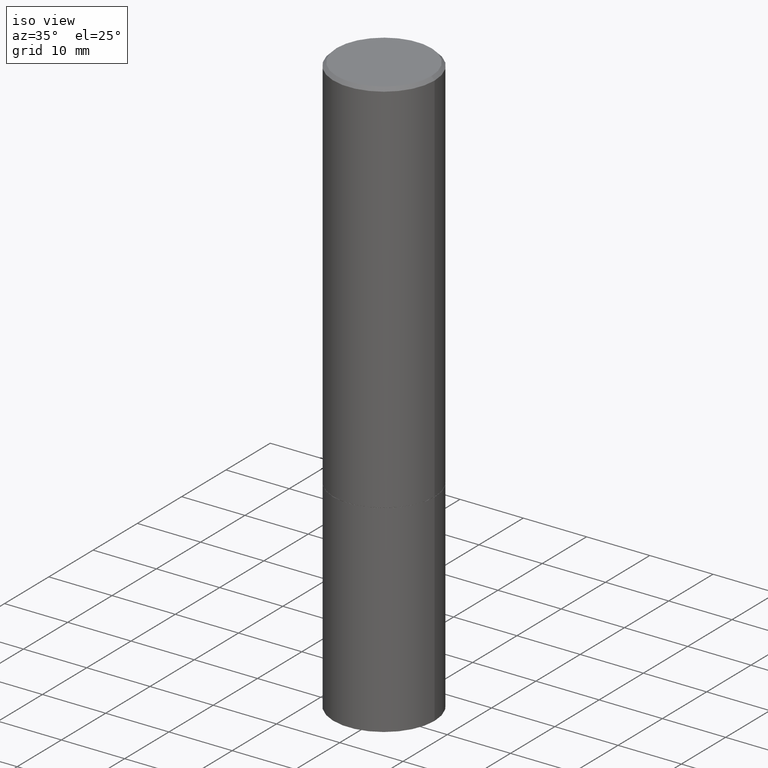
[diagram: clean part render]
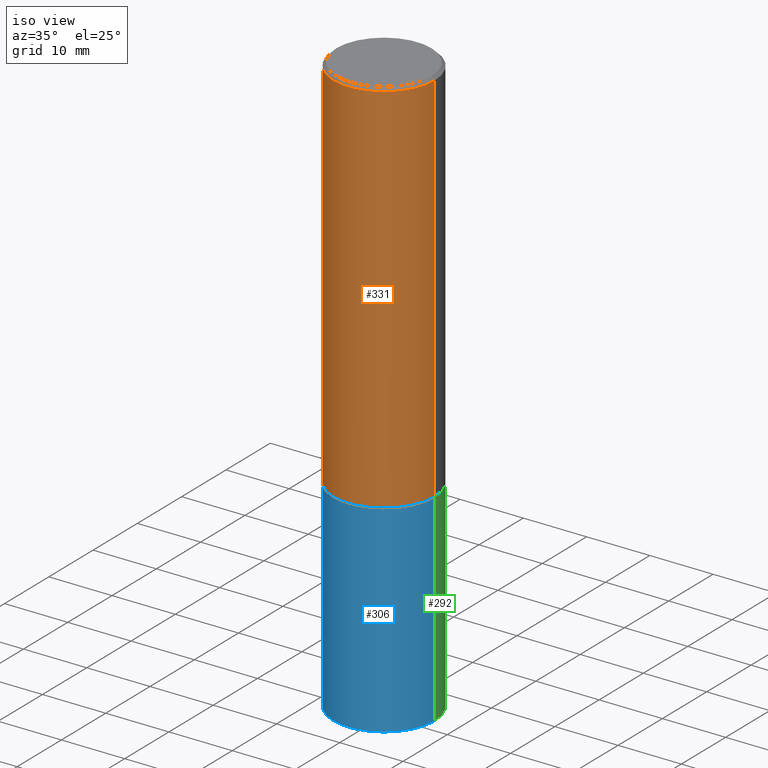
[diagram: same view with three faces highlighted in distinct colors, each labeled with its STEP entity id]
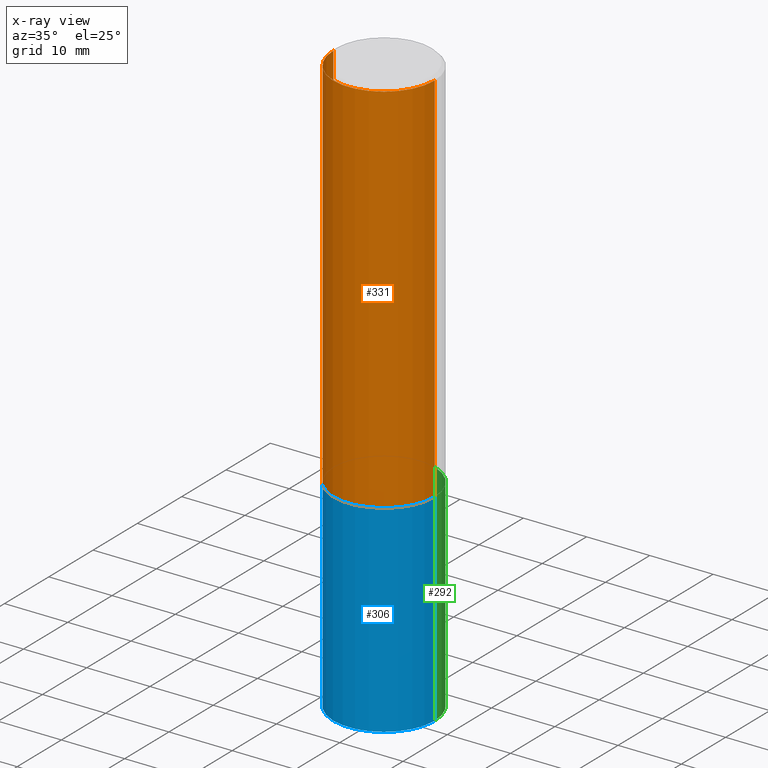
[diagram: x-ray of the same camera — body ghosted, the three highlighted faces saturated]
A machine part, iso view with three faces highlighted in distinct colors.
The next image is the same camera in x-ray (body ghosted, the three faces saturated) — at least one of them is partly hidden behind the body in this view.
Their STEP definitions:

[orange] entity #331 — the highlighted cylindrical surface (partial cylindrical patch) has radius 7.9997 mm, axis along (-0, 0, 1).
#3 = VERTEX_POINT ( 'NONE', #155 ) ;
#22 = CARTESIAN_POINT ( 'NONE',  ( -0.3149499999999998967, 2.237854346276434801E-15, -1.549218606675782116E-29 ) ) ;
#36 = VERTEX_POINT ( 'NONE', #72 ) ;
#52 = EDGE_CURVE ( 'NONE', #36, #177, #195, .T. ) ;
#67 = VECTOR ( 'NONE', #360, 39.37007874015748143 ) ;
#70 = CARTESIAN_POINT ( 'NONE',  ( -0.3149499999999997302, 2.129454468560424601E-15, -0.02000000000000007327 ) ) ;
#72 = CARTESIAN_POINT ( 'NONE',  ( -0.3149500000000000077, -1.919103335750211213E-15, -2.361199999999999743 ) ) ;
#74 = EDGE_CURVE ( 'NONE', #86, #3, #101, .T. ) ;
#86 = VERTEX_POINT ( 'NONE', #70 ) ;
#98 = DIRECTION ( 'NONE',  ( -2.445468806185136597E-29, 3.491481338843145583E-15, 1.000000000000000000 ) ) ;
#101 = CIRCLE ( 'NONE', #131, 0.3149499999999997302 ) ;
#126 = LINE ( 'NONE', #22, #67 ) ;
#128 = DIRECTION ( 'NONE',  ( 1.000000000000000000, -6.982962677686263555E-15, 0.000000000000000000 ) ) ;
#131 = AXIS2_PLACEMENT_3D ( 'NONE', #245, #98, #298 ) ;
#154 = ORIENTED_EDGE ( 'NONE', *, *, #162, .F. ) ;
#155 = CARTESIAN_POINT ( 'NONE',  ( 0.3149499999999997302, -2.230543471175005478E-15, -0.02000000000000007327 ) ) ;
#162 = EDGE_CURVE ( 'NONE', #36, #86, #126, .T. ) ;
#177 = VERTEX_POINT ( 'NONE', #227 ) ;
#181 = AXIS2_PLACEMENT_3D ( 'NONE', #352, #303, #128 ) ;
#185 = ORIENTED_EDGE ( 'NONE', *, *, #74, .F. ) ;
#188 = EDGE_LOOP ( 'NONE', ( #154, #207, #232, #185 ) ) ;
#195 = CIRCLE ( 'NONE', #181, 0.3149500000000000077 ) ;
#196 = AXIS2_PLACEMENT_3D ( 'NONE', #234, #340, #343 ) ;
#207 = ORIENTED_EDGE ( 'NONE', *, *, #52, .T. ) ;
#222 = CYLINDRICAL_SURFACE ( 'NONE', #196, 0.3149499999999998967 ) ;
#224 = EDGE_CURVE ( 'NONE', #177, #3, #251, .T. ) ;
#227 = CARTESIAN_POINT ( 'NONE',  ( 0.3149500000000000077, -1.044336983261372333E-14, -2.361199999999999743 ) ) ;
#232 = ORIENTED_EDGE ( 'NONE', *, *, #224, .T. ) ;
#234 = CARTESIAN_POINT ( 'NONE',  ( 0.000000000000000000, 0.000000000000000000, 0.000000000000000000 ) ) ;
#245 = CARTESIAN_POINT ( 'NONE',  ( 4.890937612370290675E-31, -6.982962677686316261E-17, -0.02000000000000007327 ) ) ;
#251 = LINE ( 'NONE', #330, #294 ) ;
#294 = VECTOR ( 'NONE', #336, 39.37007874015748143 ) ;
#298 = DIRECTION ( 'NONE',  ( 1.000000000000000000, -6.982962677686266711E-15, 0.000000000000000000 ) ) ;
#303 = DIRECTION ( 'NONE',  ( -2.445468806185136597E-29, 3.491481338843145583E-15, 1.000000000000000000 ) ) ;
#330 = CARTESIAN_POINT ( 'NONE',  ( 0.3149499999999998967, -2.199284095337288688E-15, 1.535751875536929289E-29 ) ) ;
#331 = ADVANCED_FACE ( 'NONE', ( #357 ), #222, .T. ) ;
#336 = DIRECTION ( 'NONE',  ( -2.445468806185136877E-29, 3.491481338843145188E-15, 1.000000000000000000 ) ) ;
#340 = DIRECTION ( 'NONE',  ( -2.445468806185136597E-29, 3.491481338843145583E-15, 1.000000000000000000 ) ) ;
#343 = DIRECTION ( 'NONE',  ( 1.000000000000000000, -6.982962677686265922E-15, 4.876176775795935232E-29 ) ) ;
#352 = CARTESIAN_POINT ( 'NONE',  ( 5.774240945164344150E-29, -8.244085737276433464E-15, -2.361199999999999743 ) ) ;
#357 = FACE_OUTER_BOUND ( 'NONE', #188, .T. ) ;
#360 = DIRECTION ( 'NONE',  ( -2.445468806185136877E-29, 3.491481338843145188E-15, 1.000000000000000000 ) ) ;

[blue] entity #306 — the highlighted cylindrical surface (partial cylindrical patch) has radius 7.9997 mm, axis along (-0, 0, 1).
#6 = VERTEX_POINT ( 'NONE', #11 ) ;
#7 = AXIS2_PLACEMENT_3D ( 'NONE', #168, #202, #135 ) ;
#10 = ORIENTED_EDGE ( 'NONE', *, *, #241, .F. ) ;
#11 = CARTESIAN_POINT ( 'NONE',  ( 0.3149500000000000077, -1.044686131395256792E-14, -2.362199999999999633 ) ) ;
#12 = EDGE_LOOP ( 'NONE', ( #32, #320, #73, #10 ) ) ;
#32 = ORIENTED_EDGE ( 'NONE', *, *, #173, .F. ) ;
#42 = VERTEX_POINT ( 'NONE', #354 ) ;
#47 = DIRECTION ( 'NONE',  ( -2.445468806185136877E-29, 3.491481338843145188E-15, 1.000000000000000000 ) ) ;
#48 = CIRCLE ( 'NONE', #226, 0.3149500000000000077 ) ;
#53 = LINE ( 'NONE', #165, #277 ) ;
#54 = CYLINDRICAL_SURFACE ( 'NONE', #141, 0.3149500000000000077 ) ;
#73 = ORIENTED_EDGE ( 'NONE', *, *, #295, .T. ) ;
#81 = CARTESIAN_POINT ( 'NONE',  ( -0.3149500000000000077, -8.209006967676139823E-15, -3.621999999999999886 ) ) ;
#102 = VECTOR ( 'NONE', #311, 39.37007874015748143 ) ;
#130 = DIRECTION ( 'NONE',  ( -2.445468806185136597E-29, 3.491481338843145583E-15, 1.000000000000000000 ) ) ;
#135 = DIRECTION ( 'NONE',  ( 1.000000000000000000, -6.982962677686263555E-15, 0.000000000000000000 ) ) ;
#141 = AXIS2_PLACEMENT_3D ( 'NONE', #286, #130, #250 ) ;
#165 = CARTESIAN_POINT ( 'NONE',  ( -0.3149500000000000077, 2.237854346276435590E-15, -1.549218606675782676E-29 ) ) ;
#168 = CARTESIAN_POINT ( 'NONE',  ( 8.857488016002564476E-29, -1.264614540928987199E-14, -3.621999999999999886 ) ) ;
#173 = EDGE_CURVE ( 'NONE', #259, #42, #53, .T. ) ;
#193 = EDGE_CURVE ( 'NONE', #259, #316, #213, .T. ) ;
#194 = FACE_OUTER_BOUND ( 'NONE', #12, .T. ) ;
#202 = DIRECTION ( 'NONE',  ( -2.445468806185136597E-29, 3.491481338843145583E-15, 1.000000000000000000 ) ) ;
#213 = CIRCLE ( 'NONE', #7, 0.3149500000000000077 ) ;
#223 = CARTESIAN_POINT ( 'NONE',  ( 0.3149500000000000077, -2.199284095337289871E-15, 1.535751875536930130E-29 ) ) ;
#225 = CARTESIAN_POINT ( 'NONE',  ( 5.776686413970529753E-29, -8.247577218615278049E-15, -2.362199999999999633 ) ) ;
#226 = AXIS2_PLACEMENT_3D ( 'NONE', #225, #305, #310 ) ;
#241 = EDGE_CURVE ( 'NONE', #42, #6, #48, .T. ) ;
#247 = CARTESIAN_POINT ( 'NONE',  ( 0.3149500000000000077, -1.484542950462716186E-14, -3.621999999999999886 ) ) ;
#250 = DIRECTION ( 'NONE',  ( 1.000000000000000000, -6.982962677686266711E-15, 4.876176775795936353E-29 ) ) ;
#259 = VERTEX_POINT ( 'NONE', #81 ) ;
#277 = VECTOR ( 'NONE', #47, 39.37007874015748143 ) ;
#286 = CARTESIAN_POINT ( 'NONE',  ( 0.000000000000000000, 0.000000000000000000, 0.000000000000000000 ) ) ;
#295 = EDGE_CURVE ( 'NONE', #316, #6, #337, .T. ) ;
#305 = DIRECTION ( 'NONE',  ( -2.445468806185136597E-29, 3.491481338843145583E-15, 1.000000000000000000 ) ) ;
#306 = ADVANCED_FACE ( 'NONE', ( #194 ), #54, .T. ) ;
#310 = DIRECTION ( 'NONE',  ( 1.000000000000000000, -6.982962677686266711E-15, 0.000000000000000000 ) ) ;
#311 = DIRECTION ( 'NONE',  ( -2.445468806185136877E-29, 3.491481338843145188E-15, 1.000000000000000000 ) ) ;
#316 = VERTEX_POINT ( 'NONE', #247 ) ;
#320 = ORIENTED_EDGE ( 'NONE', *, *, #193, .T. ) ;
#337 = LINE ( 'NONE', #223, #102 ) ;
#354 = CARTESIAN_POINT ( 'NONE',  ( -0.3149500000000000077, -8.209006967676139823E-15, -2.362199999999999633 ) ) ;

[green] entity #292 — the highlighted cylindrical surface (partial cylindrical patch) has radius 7.9997 mm, axis along (-0, 0, 1).
#6 = VERTEX_POINT ( 'NONE', #11 ) ;
#11 = CARTESIAN_POINT ( 'NONE',  ( 0.3149500000000000077, -1.044686131395256792E-14, -2.362199999999999633 ) ) ;
#15 = DIRECTION ( 'NONE',  ( -2.445468806185136597E-29, 3.491481338843145583E-15, 1.000000000000000000 ) ) ;
#27 = EDGE_CURVE ( 'NONE', #316, #259, #249, .T. ) ;
#42 = VERTEX_POINT ( 'NONE', #354 ) ;
#47 = DIRECTION ( 'NONE',  ( -2.445468806185136877E-29, 3.491481338843145188E-15, 1.000000000000000000 ) ) ;
#49 = AXIS2_PLACEMENT_3D ( 'NONE', #109, #229, #134 ) ;
#51 = CYLINDRICAL_SURFACE ( 'NONE', #49, 0.3149500000000000077 ) ;
#53 = LINE ( 'NONE', #165, #277 ) ;
#64 = DIRECTION ( 'NONE',  ( 1.000000000000000000, -6.982962677686263555E-15, 0.000000000000000000 ) ) ;
#77 = AXIS2_PLACEMENT_3D ( 'NONE', #283, #332, #253 ) ;
#81 = CARTESIAN_POINT ( 'NONE',  ( -0.3149500000000000077, -8.209006967676139823E-15, -3.621999999999999886 ) ) ;
#102 = VECTOR ( 'NONE', #311, 39.37007874015748143 ) ;
#106 = FACE_OUTER_BOUND ( 'NONE', #120, .T. ) ;
#109 = CARTESIAN_POINT ( 'NONE',  ( 0.000000000000000000, 0.000000000000000000, 0.000000000000000000 ) ) ;
#120 = EDGE_LOOP ( 'NONE', ( #267, #174, #293, #318 ) ) ;
#129 = CARTESIAN_POINT ( 'NONE',  ( 8.857488016002564476E-29, -1.264614540928987199E-14, -3.621999999999999886 ) ) ;
#134 = DIRECTION ( 'NONE',  ( 1.000000000000000000, -6.982962677686266711E-15, 4.876176775795936353E-29 ) ) ;
#165 = CARTESIAN_POINT ( 'NONE',  ( -0.3149500000000000077, 2.237854346276435590E-15, -1.549218606675782676E-29 ) ) ;
#173 = EDGE_CURVE ( 'NONE', #259, #42, #53, .T. ) ;
#174 = ORIENTED_EDGE ( 'NONE', *, *, #173, .T. ) ;
#223 = CARTESIAN_POINT ( 'NONE',  ( 0.3149500000000000077, -2.199284095337289871E-15, 1.535751875536930130E-29 ) ) ;
#229 = DIRECTION ( 'NONE',  ( -2.445468806185136597E-29, 3.491481338843145583E-15, 1.000000000000000000 ) ) ;
#247 = CARTESIAN_POINT ( 'NONE',  ( 0.3149500000000000077, -1.484542950462716186E-14, -3.621999999999999886 ) ) ;
#249 = CIRCLE ( 'NONE', #307, 0.3149500000000000077 ) ;
#253 = DIRECTION ( 'NONE',  ( 1.000000000000000000, -6.982962677686266711E-15, 0.000000000000000000 ) ) ;
#259 = VERTEX_POINT ( 'NONE', #81 ) ;
#267 = ORIENTED_EDGE ( 'NONE', *, *, #27, .T. ) ;
#277 = VECTOR ( 'NONE', #47, 39.37007874015748143 ) ;
#283 = CARTESIAN_POINT ( 'NONE',  ( 5.776686413970529753E-29, -8.247577218615278049E-15, -2.362199999999999633 ) ) ;
#290 = EDGE_CURVE ( 'NONE', #6, #42, #345, .T. ) ;
#292 = ADVANCED_FACE ( 'NONE', ( #106 ), #51, .T. ) ;
#293 = ORIENTED_EDGE ( 'NONE', *, *, #290, .F. ) ;
#295 = EDGE_CURVE ( 'NONE', #316, #6, #337, .T. ) ;
#307 = AXIS2_PLACEMENT_3D ( 'NONE', #129, #15, #64 ) ;
#311 = DIRECTION ( 'NONE',  ( -2.445468806185136877E-29, 3.491481338843145188E-15, 1.000000000000000000 ) ) ;
#316 = VERTEX_POINT ( 'NONE', #247 ) ;
#318 = ORIENTED_EDGE ( 'NONE', *, *, #295, .F. ) ;
#332 = DIRECTION ( 'NONE',  ( -2.445468806185136597E-29, 3.491481338843145583E-15, 1.000000000000000000 ) ) ;
#337 = LINE ( 'NONE', #223, #102 ) ;
#345 = CIRCLE ( 'NONE', #77, 0.3149500000000000077 ) ;
#354 = CARTESIAN_POINT ( 'NONE',  ( -0.3149500000000000077, -8.209006967676139823E-15, -2.362199999999999633 ) ) ;